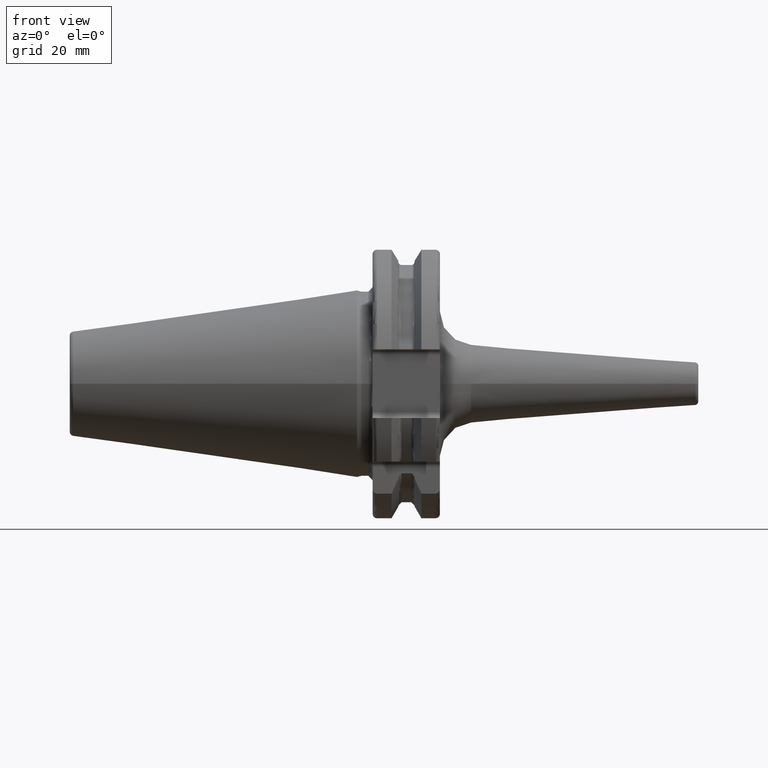
[diagram: clean part render]
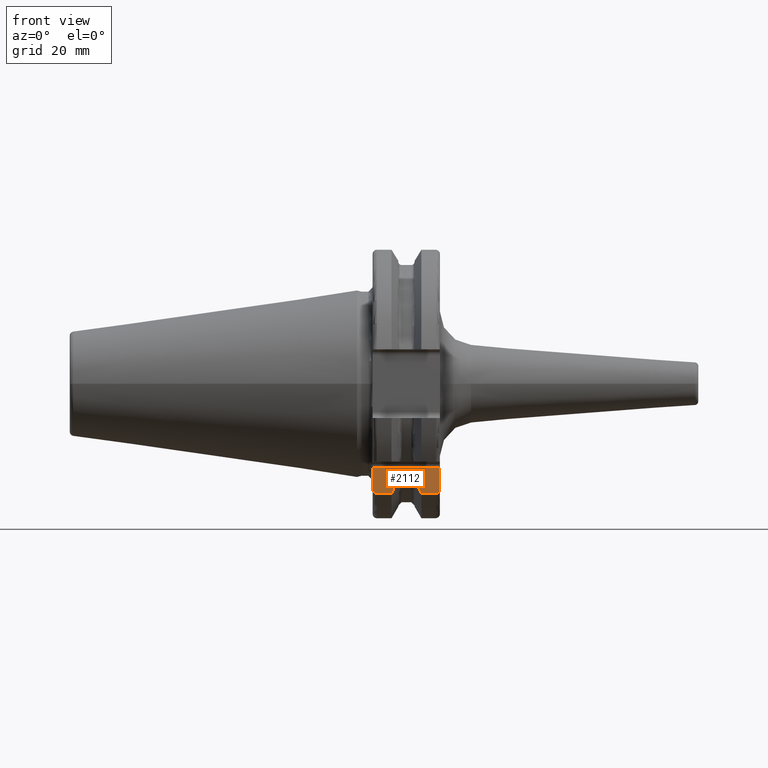
[diagram: same view with one face highlighted and labeled with its STEP entity id]
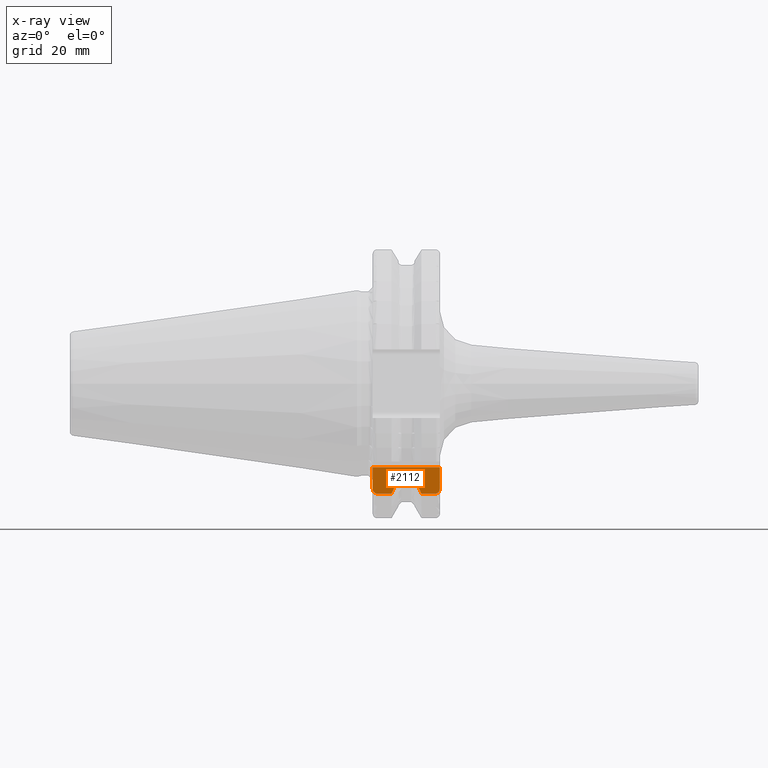
[diagram: x-ray of the same camera — body ghosted, the highlighted face saturated]
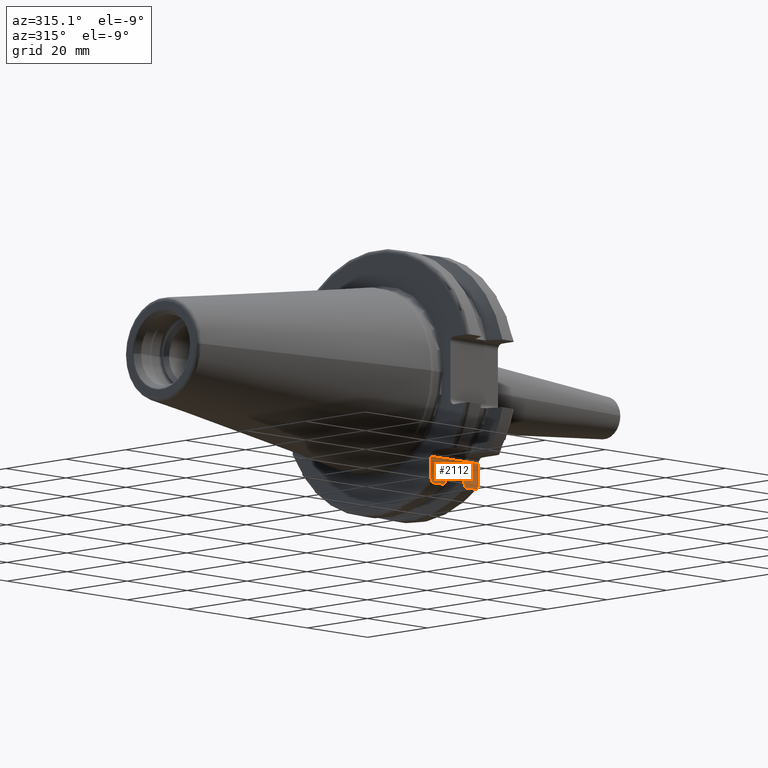
[diagram: same view with one face highlighted and labeled with its STEP entity id]
A machine part, front view. The second image highlights one B-rep face of the part: STEP entity #2112.
The next image is the same camera in x-ray: the body ghosted, the highlighted face saturated — about 0% of this face is hidden behind the body in this view.
A second angle (auxiliary view) of the same face is appended — the face is thin or edge-on in the first view.
In plain terms, the highlighted planar face has unit normal (0, 1, 0).
Its self-contained STEP definition (entity closure, byte-faithful):
#178=DIRECTION('',(0.E0,0.E0,1.E0));
#179=VECTOR('',#178,4.990259339464E0);
#180=CARTESIAN_POINT('',(3.2E0,-1.835E1,-2.469025933946E1));
#181=LINE('',#180,#179);
#217=DIRECTION('',(0.E0,0.E0,1.E0));
#218=VECTOR('',#217,4.990259339464E0);
#219=CARTESIAN_POINT('',(1.905E1,-1.835E1,-2.469025933946E1));
#220=LINE('',#219,#218);
#325=CARTESIAN_POINT('',(1.905E1,-1.835E1,-2.469025933946E1));
#326=CARTESIAN_POINT('',(1.905E1,-1.835E1,-2.477827489148E1));
#327=CARTESIAN_POINT('',(1.903550352933E1,-1.835E1,-2.495194722121E1));
#328=CARTESIAN_POINT('',(1.896629632127E1,-1.835E1,-2.521302960336E1));
#329=CARTESIAN_POINT('',(1.884964259244E1,-1.835E1,-2.545175760021E1));
#330=CARTESIAN_POINT('',(1.869337393206E1,-1.835E1,-2.565125079223E1));
#331=CARTESIAN_POINT('',(1.850440420446E1,-1.835E1,-2.580344847600E1));
#332=CARTESIAN_POINT('',(1.828893233655E1,-1.835E1,-2.590127687802E1));
#333=CARTESIAN_POINT('',(1.813210111876E1,-1.835E1,-2.592554543785E1));
#334=CARTESIAN_POINT('',(1.805E1,-1.835E1,-2.592554543785E1));
#372=DIRECTION('',(1.E0,0.E0,0.E0));
#373=VECTOR('',#372,3.445946479578E0);
#374=CARTESIAN_POINT('',(4.2E0,-1.835E1,-2.592554543785E1));
#375=LINE('',#374,#373);
#390=DIRECTION('',(1.E0,0.E0,0.E0));
#391=VECTOR('',#390,3.345946479578E0);
#392=CARTESIAN_POINT('',(1.470405352042E1,-1.835E1,-2.592554543785E1));
#393=LINE('',#392,#391);
#441=CARTESIAN_POINT('',(4.2E0,-1.835E1,-2.592554543785E1));
#442=CARTESIAN_POINT('',(4.117978515713E0,-1.835E1,-2.592554543785E1));
#443=CARTESIAN_POINT('',(3.961246891048E0,-1.835E1,-2.590134188482E1));
#444=CARTESIAN_POINT('',(3.745539786217E0,-1.835E1,-2.580342617652E1));
#445=CARTESIAN_POINT('',(3.556578831610E0,-1.835E1,-2.565121806264E1));
#446=CARTESIAN_POINT('',(3.400124325915E0,-1.835E1,-2.545142383546E1));
#447=CARTESIAN_POINT('',(3.283526257188E0,-1.835E1,-2.521253976185E1));
#448=CARTESIAN_POINT('',(3.214446436835E0,-1.835E1,-2.495157117356E1));
#449=CARTESIAN_POINT('',(3.2E0,-1.835E1,-2.477812311755E1));
#450=CARTESIAN_POINT('',(3.2E0,-1.835E1,-2.469025933946E1));
#484=DIRECTION('',(-1.E0,0.E0,0.E0));
#485=VECTOR('',#484,1.585E1);
#486=CARTESIAN_POINT('',(1.905E1,-1.835E1,-1.97E1));
#487=LINE('',#486,#485);
#500=CARTESIAN_POINT('',(1.30875E1,-1.835E1,-2.240773613162E1));
#501=CARTESIAN_POINT('',(1.325213098463E1,-1.835E1,-2.277629848758E1));
#502=CARTESIAN_POINT('',(1.359130882027E1,-1.835E1,-2.352831190146E1));
#503=CARTESIAN_POINT('',(1.412957926498E1,-1.835E1,-2.469989032362E1));
#504=CARTESIAN_POINT('',(1.450914442104E1,-1.835E1,-2.551194640168E1));
#505=CARTESIAN_POINT('',(1.470405352042E1,-1.835E1,-2.592554543785E1));
#548=DIRECTION('',(0.E0,0.E0,1.E0));
#549=VECTOR('',#548,2.754068371193E-1);
#550=CARTESIAN_POINT('',(1.30875E1,-1.835E1,-2.240773613162E1));
#551=LINE('',#550,#549);
#651=DIRECTION('',(0.E0,0.E0,1.E0));
#652=VECTOR('',#651,2.754068371193E-1);
#653=CARTESIAN_POINT('',(9.2625E0,-1.835E1,-2.240773613162E1));
#654=LINE('',#653,#652);
#742=CARTESIAN_POINT('',(9.2625E0,-1.835E1,-2.240773613162E1));
#743=CARTESIAN_POINT('',(9.097869015375E0,-1.835E1,-2.277629848758E1));
#744=CARTESIAN_POINT('',(8.758691179732E0,-1.835E1,-2.352831190146E1));
#745=CARTESIAN_POINT('',(8.220420735022E0,-1.835E1,-2.469989032362E1));
#746=CARTESIAN_POINT('',(7.840855578955E0,-1.835E1,-2.551194640168E1));
#747=CARTESIAN_POINT('',(7.645946479578E0,-1.835E1,-2.592554543785E1));
#793=CARTESIAN_POINT('',(1.00125E1,-1.835E1,-2.114893614346E1));
#794=CARTESIAN_POINT('',(9.951993698949E0,-1.835E1,-2.114893614346E1));
#795=CARTESIAN_POINT('',(9.836000286499E0,-1.835E1,-2.116785770514E1));
#796=CARTESIAN_POINT('',(9.674360365633E0,-1.835E1,-2.124605529531E1));
#797=CARTESIAN_POINT('',(9.533017193128E0,-1.835E1,-2.136726141392E1));
#798=CARTESIAN_POINT('',(9.415344880527E0,-1.835E1,-2.152613059545E1));
#799=CARTESIAN_POINT('',(9.327039810665E0,-1.835E1,-2.171558232438E1));
#800=CARTESIAN_POINT('',(9.273817984253E0,-1.835E1,-2.192356855291E1));
#801=CARTESIAN_POINT('',(9.2625E0,-1.835E1,-2.206207271485E1));
#802=CARTESIAN_POINT('',(9.2625E0,-1.835E1,-2.213232929450E1));
#840=DIRECTION('',(1.E0,0.E0,0.E0));
#841=VECTOR('',#840,2.325E0);
#842=CARTESIAN_POINT('',(1.00125E1,-1.835E1,-2.114893614346E1));
#843=LINE('',#842,#841);
#873=CARTESIAN_POINT('',(1.30875E1,-1.835E1,-2.213232929450E1));
#874=CARTESIAN_POINT('',(1.30875E1,-1.835E1,-2.206221408282E1));
#875=CARTESIAN_POINT('',(1.307623234956E1,-1.835E1,-2.192389012956E1));
#876=CARTESIAN_POINT('',(1.302304002386E1,-1.835E1,-2.171577032079E1));
#877=CARTESIAN_POINT('',(1.293464596960E1,-1.835E1,-2.152606845134E1));
#878=CARTESIAN_POINT('',(1.281674247215E1,-1.835E1,-2.136698869001E1));
#879=CARTESIAN_POINT('',(1.267543530336E1,-1.835E1,-2.124593918272E1));
#880=CARTESIAN_POINT('',(1.251391277471E1,-1.835E1,-2.116784088975E1));
#881=CARTESIAN_POINT('',(1.239797666454E1,-1.835E1,-2.114893614346E1));
#882=CARTESIAN_POINT('',(1.23375E1,-1.835E1,-2.114893614346E1));
#1338=CARTESIAN_POINT('',(9.2625E0,-1.835E1,-2.240773613162E1));
#1339=CARTESIAN_POINT('',(9.2625E0,-1.835E1,-2.213232929450E1));
#1340=VERTEX_POINT('',#1338);
#1341=VERTEX_POINT('',#1339);
#1366=CARTESIAN_POINT('',(1.30875E1,-1.835E1,-2.240773613162E1));
#1367=CARTESIAN_POINT('',(1.30875E1,-1.835E1,-2.213232929450E1));
#1368=VERTEX_POINT('',#1366);
#1369=VERTEX_POINT('',#1367);
#1411=CARTESIAN_POINT('',(1.00125E1,-1.835E1,-2.114893614346E1));
#1412=VERTEX_POINT('',#1411);
#1413=CARTESIAN_POINT('',(1.23375E1,-1.835E1,-2.114893614346E1));
#1414=VERTEX_POINT('',#1413);
#1419=CARTESIAN_POINT('',(1.905E1,-1.835E1,-2.469025933946E1));
#1420=VERTEX_POINT('',#1419);
#1421=CARTESIAN_POINT('',(1.805E1,-1.835E1,-2.592554543785E1));
#1422=VERTEX_POINT('',#1421);
#1423=CARTESIAN_POINT('',(4.2E0,-1.835E1,-2.592554543785E1));
#1424=VERTEX_POINT('',#1423);
#1425=CARTESIAN_POINT('',(3.2E0,-1.835E1,-2.469025933946E1));
#1426=VERTEX_POINT('',#1425);
#1463=CARTESIAN_POINT('',(1.905E1,-1.835E1,-1.97E1));
#1464=VERTEX_POINT('',#1463);
#1469=CARTESIAN_POINT('',(3.2E0,-1.835E1,-1.97E1));
#1470=VERTEX_POINT('',#1469);
#1474=VERTEX_POINT('',#505);
#1475=VERTEX_POINT('',#747);
#2083=CARTESIAN_POINT('',(1.905E1,-1.835E1,-2.835E1));
#2084=DIRECTION('',(0.E0,1.E0,0.E0));
#2085=DIRECTION('',(0.E0,0.E0,1.E0));
#2086=AXIS2_PLACEMENT_3D('',#2083,#2084,#2085);
#2087=PLANE('',#2086);
#2088=ORIENTED_EDGE('',*,*,#1790,.F.);
#2089=ORIENTED_EDGE('',*,*,#1979,.T.);
#2090=ORIENTED_EDGE('',*,*,#2022,.F.);
#2092=ORIENTED_EDGE('',*,*,#2091,.F.);
#2094=ORIENTED_EDGE('',*,*,#2093,.T.);
#2096=ORIENTED_EDGE('',*,*,#2095,.T.);
#2098=ORIENTED_EDGE('',*,*,#2097,.F.);
#2100=ORIENTED_EDGE('',*,*,#2099,.T.);
#2102=ORIENTED_EDGE('',*,*,#2101,.F.);
#2104=ORIENTED_EDGE('',*,*,#2103,.T.);
#2105=ORIENTED_EDGE('',*,*,#2007,.F.);
#2106=ORIENTED_EDGE('',*,*,#2064,.T.);
#2107=ORIENTED_EDGE('',*,*,#1750,.T.);
#2109=ORIENTED_EDGE('',*,*,#2108,.F.);
#2110=EDGE_LOOP('',(#2088,#2089,#2090,#2092,#2094,#2096,#2098,#2100,#2102,#2104,
#2105,#2106,#2107,#2109));
#2111=FACE_OUTER_BOUND('',#2110,.F.);
#2112=ADVANCED_FACE('',(#2111),#2087,.F.);
#335=B_SPLINE_CURVE_WITH_KNOTS('',3,(#325,#326,#327,#328,#329,#330,#331,#332,
#333,#334),.UNSPECIFIED.,.F.,.F.,(4,1,1,1,1,1,1,4),(0.E0,1.428571428571E-1,
2.857142857143E-1,4.285714285714E-1,5.714285714286E-1,7.142857142857E-1,
8.571428571429E-1,1.E0),.UNSPECIFIED.);
#451=B_SPLINE_CURVE_WITH_KNOTS('',3,(#441,#442,#443,#444,#445,#446,#447,#448,
#449,#450),.UNSPECIFIED.,.F.,.F.,(4,1,1,1,1,1,1,4),(0.E0,1.428571428571E-1,
2.857142857143E-1,4.285714285714E-1,5.714285714286E-1,7.142857142857E-1,
8.571428571429E-1,1.E0),.UNSPECIFIED.);
#506=B_SPLINE_CURVE_WITH_KNOTS('',3,(#500,#501,#502,#503,#504,#505),
.UNSPECIFIED.,.F.,.F.,(4,1,1,4),(0.E0,3.333333333333E-1,6.666666666667E-1,1.E0),
.UNSPECIFIED.);
#748=B_SPLINE_CURVE_WITH_KNOTS('',3,(#742,#743,#744,#745,#746,#747),
.UNSPECIFIED.,.F.,.F.,(4,1,1,4),(0.E0,3.333333333333E-1,6.666666666667E-1,1.E0),
.UNSPECIFIED.);
#803=B_SPLINE_CURVE_WITH_KNOTS('',3,(#793,#794,#795,#796,#797,#798,#799,#800,
#801,#802),.UNSPECIFIED.,.F.,.F.,(4,1,1,1,1,1,1,4),(0.E0,1.428571428571E-1,
2.857142857143E-1,4.285714285714E-1,5.714285714286E-1,7.142857142857E-1,
8.571428571429E-1,1.E0),.UNSPECIFIED.);
#883=B_SPLINE_CURVE_WITH_KNOTS('',3,(#873,#874,#875,#876,#877,#878,#879,#880,
#881,#882),.UNSPECIFIED.,.F.,.F.,(4,1,1,1,1,1,1,4),(0.E0,1.428571428571E-1,
2.857142857143E-1,4.285714285714E-1,5.714285714286E-1,7.142857142857E-1,
8.571428571429E-1,1.E0),.UNSPECIFIED.);
#1750=EDGE_CURVE('',#1426,#1470,#181,.T.);
#1790=EDGE_CURVE('',#1420,#1464,#220,.T.);
#1979=EDGE_CURVE('',#1420,#1422,#335,.T.);
#2007=EDGE_CURVE('',#1424,#1475,#375,.T.);
#2022=EDGE_CURVE('',#1474,#1422,#393,.T.);
#2064=EDGE_CURVE('',#1424,#1426,#451,.T.);
#2091=EDGE_CURVE('',#1368,#1474,#506,.T.);
#2093=EDGE_CURVE('',#1368,#1369,#551,.T.);
#2095=EDGE_CURVE('',#1369,#1414,#883,.T.);
#2097=EDGE_CURVE('',#1412,#1414,#843,.T.);
#2099=EDGE_CURVE('',#1412,#1341,#803,.T.);
#2101=EDGE_CURVE('',#1340,#1341,#654,.T.);
#2103=EDGE_CURVE('',#1340,#1475,#748,.T.);
#2108=EDGE_CURVE('',#1464,#1470,#487,.T.);